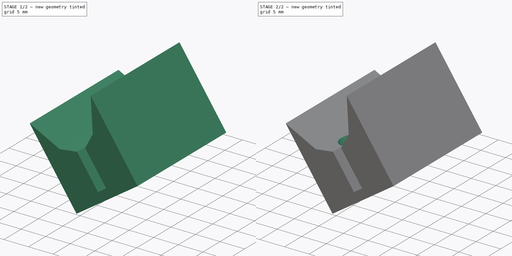
[diagram: build sequence overview — one tinted view per stage of 2, left to right]
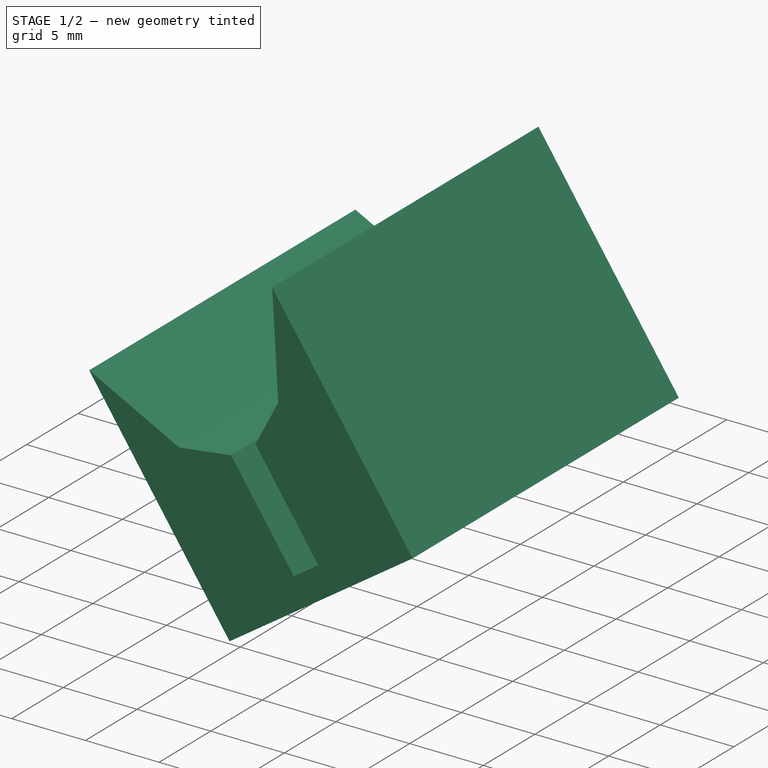
[diagram: stage 1 of 2 — iso view after this stage's code; geometry added in this stage tinted green]
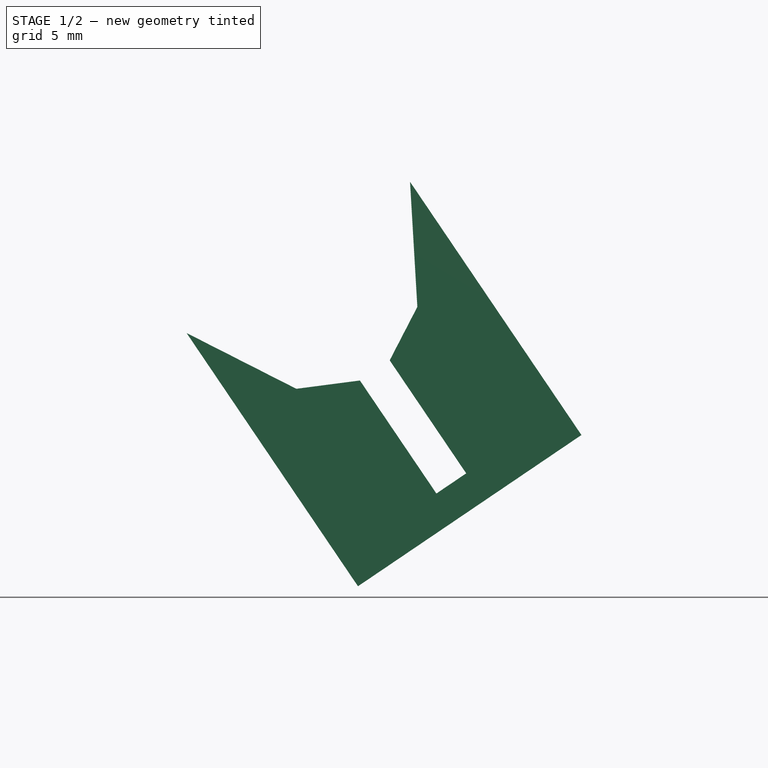
[diagram: stage 1 of 2 — front view after this stage's code; geometry added in this stage tinted green]
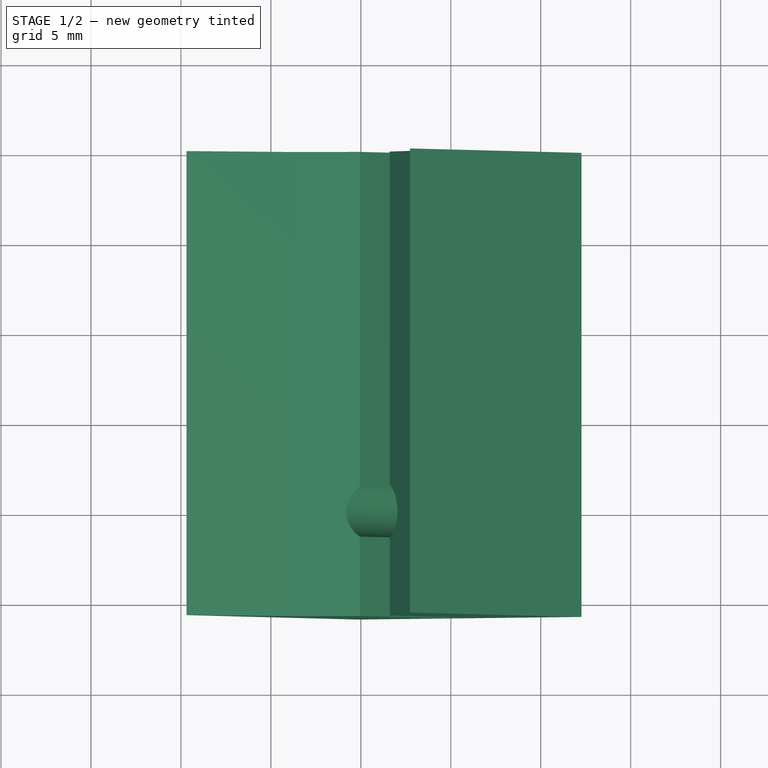
[diagram: stage 1 of 2 — top view after this stage's code; geometry added in this stage tinted green]
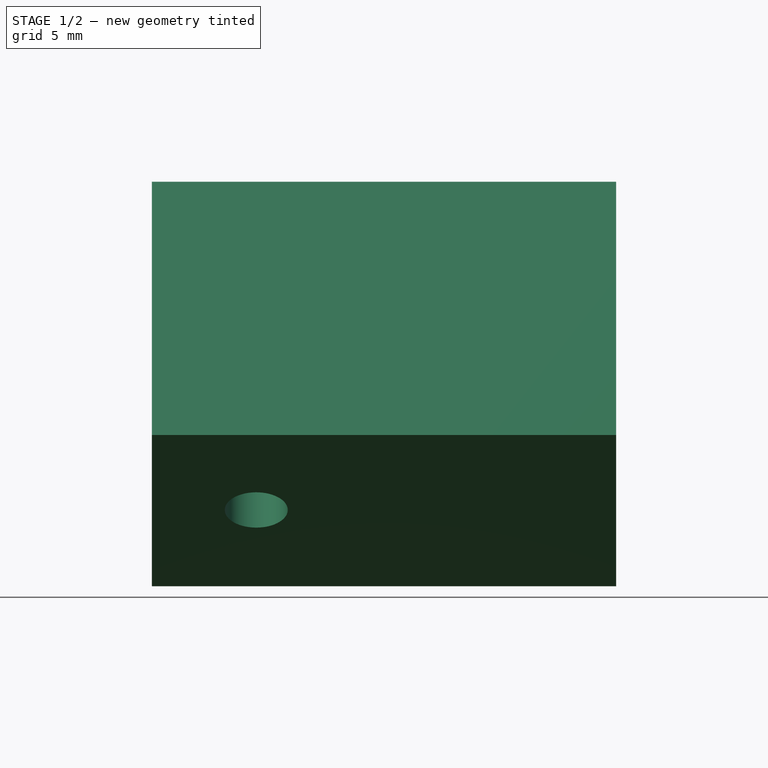
[diagram: stage 1 of 2 — right view after this stage's code; geometry added in this stage tinted green]
FCSTD DOCUMENT  (FreeCAD 0.21R33668 +7 (Git))
Label: T-grip-end-short
License: All rights reserved
LicenseURL: http://en.wikipedia.org/wiki/All_rights_reserved
objects: Sketcher::SketchObject×3, PartDesign::Plane×2, PartDesign::Pocket×2, PartDesign::Pad×1, PartDesign::Chamfer×1, PartDesign::Body×1
note: 14 computed .brp shape members not serialized (recipe doc carries the construction recipe); baked Part::Feature solids carry a one-line shape summary decoded from their .brp

FEATURE [Sketcher::SketchObject] Sketch
  FullyConstrained = false
  MapMode = 5
  Placement = pos=(0,0,0) rot=(1,0,0;1.5708rad)
  Support = -> [XZ_Plane]
  sketch-geometry (32):
    g0: LineSegment StartX=6.51565 StartY=40.1628 StartZ=0 EndX=112.93 EndY=112.193 EndZ=0
    g1: LineSegment StartX=112.93 StartY=112.193 StartZ=0 EndX=111.528 EndY=114.263 EndZ=0
    g2: LineSegment StartX=111.528 StartY=114.263 StartZ=0 EndX=5.63906 EndY=42.5883 EndZ=0
    g3: LineSegment StartX=119.223 StartY=116.565 StartZ=0 EndX=118.114 EndY=118.806 EndZ=0
    g4: LineSegment StartX=120.466 StartY=125.143 StartZ=0 EndX=104.731 EndY=114.492 EndZ=0
    g5: LineSegment StartX=104.731 StartY=114.492 StartZ=0 EndX=105.853 EndY=112.836 EndZ=0
    g6: LineSegment StartX=105.853 StartY=112.836 StartZ=0 EndX=112.892 EndY=117.601 EndZ=0
    g7: LineSegment StartX=112.892 StartY=117.601 StartZ=0 EndX=122.421 EndY=103.523 EndZ=0
    g8: LineSegment StartX=122.421 StartY=103.523 StartZ=0 EndX=124.077 EndY=104.644 EndZ=0
    g9: LineSegment StartX=124.077 StartY=104.644 StartZ=0 EndX=114.548 EndY=118.722 EndZ=0
    g10: LineSegment StartX=114.548 StartY=118.722 StartZ=0 EndX=121.587 EndY=123.487 EndZ=0
    g11: LineSegment StartX=121.587 StartY=123.487 StartZ=0 EndX=120.466 EndY=125.143 EndZ=0
    g12: LineSegment StartX=110.312 StartY=109.817 StartZ=0 EndX=119.841 EndY=95.7386 EndZ=0
    g13: LineSegment StartX=119.841 StartY=95.7386 StartZ=0 EndX=132.263 EndY=104.147 EndZ=0
    g14: LineSegment StartX=132.263 StartY=104.147 StartZ=0 EndX=122.733 EndY=118.225 EndZ=0
    g15: LineSegment StartX=122.733 StartY=118.225 StartZ=0 EndX=124.39 EndY=119.346 EndZ=0
    g16: LineSegment StartX=124.39 StartY=119.346 StartZ=0 EndX=135.04 EndY=103.612 EndZ=0
    g17: LineSegment StartX=135.04 StartY=103.612 StartZ=0 EndX=119.306 EndY=92.9612 EndZ=0
    g18: LineSegment StartX=119.306 StartY=92.9612 StartZ=0 EndX=108.655 EndY=108.696 EndZ=0
    g19: LineSegment StartX=108.655 StartY=108.696 StartZ=0 EndX=110.312 EndY=109.817 EndZ=0
    g20: LineSegment StartX=110.312 StartY=109.817 StartZ=0 EndX=116.414 EndY=106.714 EndZ=0
    g21: LineSegment StartX=116.414 StartY=106.714 StartZ=0 EndX=119.948 EndY=107.176 EndZ=0
    g22: LineSegment StartX=119.948 StartY=107.176 StartZ=0 EndX=124.2 EndY=100.894 EndZ=0
    g23: LineSegment StartX=124.2 StartY=100.894 StartZ=0 EndX=125.857 EndY=102.015 EndZ=0
    g24: LineSegment StartX=125.857 StartY=102.015 StartZ=0 EndX=121.604 EndY=108.297 EndZ=0
    g25: LineSegment StartX=121.604 StartY=108.297 StartZ=0 EndX=123.141 EndY=111.268 EndZ=0
    g26: LineSegment StartX=123.141 StartY=111.268 StartZ=0 EndX=122.733 EndY=118.225 EndZ=0
    g27: LineSegment StartX=122.733 StartY=118.225 StartZ=0 EndX=132.263 EndY=104.147 EndZ=0
    g28: LineSegment StartX=132.263 StartY=104.147 StartZ=0 EndX=119.841 EndY=95.7386 EndZ=0
    g29: LineSegment StartX=119.841 StartY=95.7386 StartZ=0 EndX=110.312 EndY=109.817 EndZ=0
    g30: LineSegment StartX=116.414 StartY=106.714 StartZ=0 EndX=123.141 EndY=111.268 EndZ=0
    g31: LineSegment StartX=119.948 StartY=107.176 StartZ=0 EndX=121.604 EndY=108.297 EndZ=0
  constraints (84):
    c: Coincident(g0,g1)
    c: Coincident(g1,g2)
    c: Parallel(g0,g2)
    c: Perpendicular(g1,g0)
    c: Distance(g1) = 2.5
    c: Distance(g0) = 128.5
    c: Equal(g3,g1)
    c: Coincident(g4,g5)
    c: Coincident(g5,g6)
    c: Coincident(g6,g7)
    c: Coincident(g7,g8)
    c: Coincident(g8,g9)
    c: Coincident(g9,g10)
    c: Coincident(g10,g11)
    c: Coincident(g11,g4)
    c: Coincident(g12,g13)
    c: Coincident(g13,g14)
    c: Coincident(g14,g15)
    c: Coincident(g15,g16)
    c: Coincident(g16,g17)
    c: Coincident(g17,g18)
    c: Coincident(g18,g19)
    c: Coincident(g19,g12)
    c: Perpendicular(g13,g12)
    c: Parallel(g16,g14)
    c: Parallel(g14,g12)
    c: Parallel(g12,g18)
    c: Parallel(g18,g5)
    c: Parallel(g5,g7)
    c: Parallel(g7,g9)
    c: Parallel(g9,g11)
    c: Parallel(g4,g6)
    c: Parallel(g6,g10)
    c: Parallel(g10,g8)
    c: Parallel(g8,g13)
    c: Parallel(g13,g17)
    c: Parallel(g17,g15)
    c: Parallel(g15,g19)
    c: Equal(g8,g5)
    c: Equal(g5,g11)
    c: Equal(g15,g19)
    c: Distance(g8) = 2
    c: Distance(g4) = 19
    c: Equal(g6,g10)
    c: Distance(g8,g4) = 19
    c: Equal(g19,g8)
    c: Distance(g13,g17) = 2
    c: Equal(g16,g17)
    c: Equal(g17,g4)
    c: Equal(g18,g16)
    c: Parallel(g6,g2)
    c: Distance(g1,g7) = 3
    c: Distance(g3,g9) = 3
    c: PointOnObject(g5,g18)
    c: Distance(g5,g2) = 2
    c: Distance(g5,g19) = 5
    c: DistanceX(g17) = 119.306
    c: DistanceY(g17) = 92.9612
    c: DistanceX(g4) = 120.466
    c: Coincident(g12,g20)
    c: Coincident(g20,g21)
    c: PointOnObject(g21,g7)
    c: Coincident(g21,g22)
    c: Coincident(g22,g23)
    c: Coincident(g23,g24)
    c: PointOnObject(g24,g9)
    c: Coincident(g24,g25)
    c: Coincident(g25,g26)
    c: Coincident(g26,g14)
    c: Coincident(g26,g27)
    c: Coincident(g27,g13)
    c: Coincident(g27,g28)
    c: Coincident(g28,g12)
    c: Coincident(g28,g29)
    c: Coincident(g29,g20)
    c: Coincident(g30,g20)
    c: Coincident(g30,g25)
    c: Coincident(g31,g21)
    c: Coincident(g31,g24)
    c: Parallel(g23,g31)
    c: Parallel(g31,g30)
    c: Parallel(g30,g17)
    c: Parallel(g22,g24)
    c: Parallel(g24,g27)
FEATURE [PartDesign::Pad] Pad
  Direction = (0,-1,-2e-16)
  Length = 25.8
  Length2 = 10
  Placement = pos=(0,0,0) rot=(1,0,0;1.5708rad)
  Profile = -> Sketch
  ReferenceAxis = -> Sketch [N_Axis]
  Type = 0
FEATURE [PartDesign::Plane] DatumPlane
  Length = 231.2
  MapMode = 5
  Placement = pos=(-6.78679,-2.2e-15,10.0265) rot=(0.956066,0,0.293151;3.14159rad)
  ResizeMode = 0
  Support = -> [Pad]
  Width = 71.4826
FEATURE [Sketcher::SketchObject] Sketch001
  FullyConstrained = true
  MapMode = 5
  Placement = pos=(-6.78679,-2.2e-15,10.0265) rot=(0.956066,0,0.293151;3.14159rad)
  Support = -> [DatumPlane]
  sketch-geometry (5):
    g0: Circle CenterX=160.476 CenterY=20 CenterZ=0 NormalX=0 NormalY=0 NormalZ=1 AngleXU=0 Radius=1.75
    g1: LineSegment StartX=152.576 StartY=0 StartZ=0 EndX=168.376 EndY=0 EndZ=0
    g2: LineSegment StartX=168.376 StartY=0 StartZ=0 EndX=168.376 EndY=40 EndZ=0
    g3: LineSegment StartX=168.376 StartY=40 StartZ=0 EndX=152.576 EndY=40 EndZ=0
    g4: LineSegment StartX=152.576 StartY=40 StartZ=0 EndX=152.576 EndY=0 EndZ=0
  constraints (14):
    c: Coincident(g1,g2)
    c: Coincident(g2,g3)
    c: Coincident(g3,g4)
    c: Coincident(g4,g1)
    c: Horizontal(g1)
    c: Horizontal(g3)
    c: Vertical(g2)
    c: Vertical(g4)
    c: PointOnObject(g1,g-1)
    c: DistanceX(g3) = 152.576
    c: DistanceY(g3) = 40
    c: DistanceX(g1) = 168.376
    c: Symmetric(g3,g1,g0)
    c: Diameter(g0) = 3.5
FEATURE [PartDesign::Pocket] Pocket
  BaseFeature = -> Pad
  Direction = (-0.560544,-2e-16,0.828125)
  Length = 38
  Length2 = 5
  Placement = pos=(0,0,0) rot=(1,0,0;1.5708rad)
  Profile = -> Sketch001
  ReferenceAxis = -> Sketch001 [N_Axis]
  Type = 0
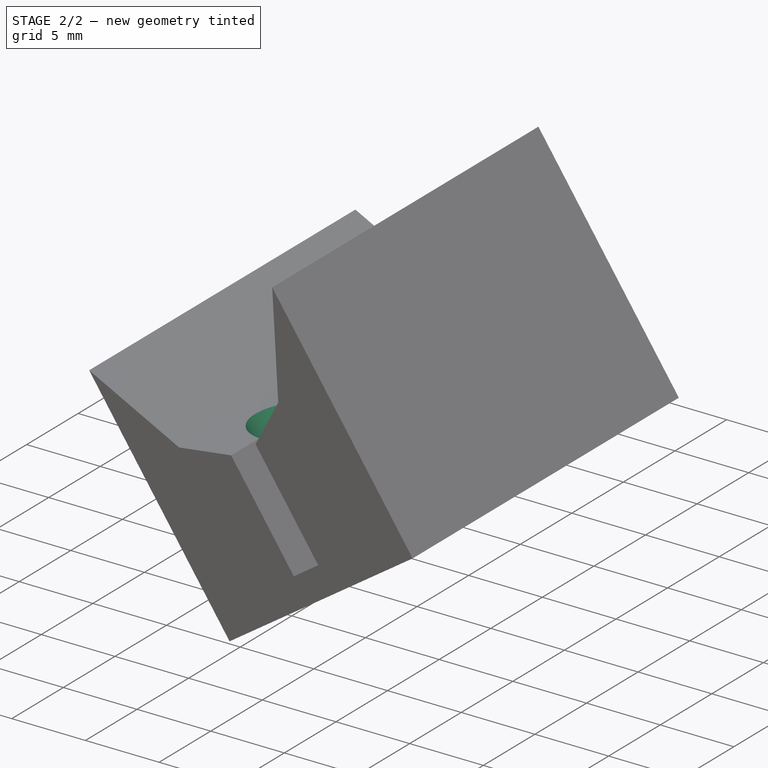
[diagram: stage 2 of 2 — iso view after this stage's code; geometry added in this stage tinted green]
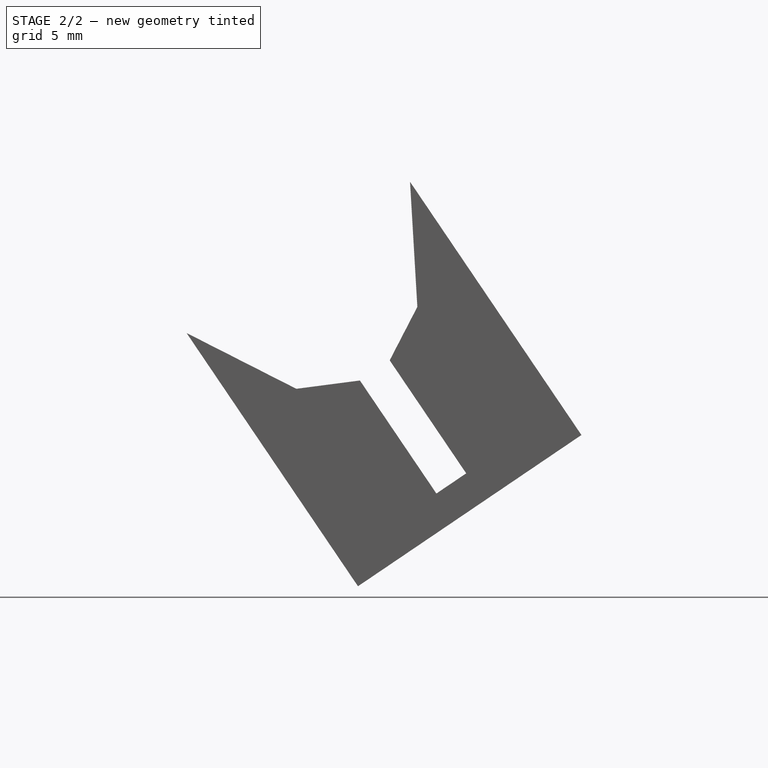
[diagram: stage 2 of 2 — front view after this stage's code; geometry added in this stage tinted green]
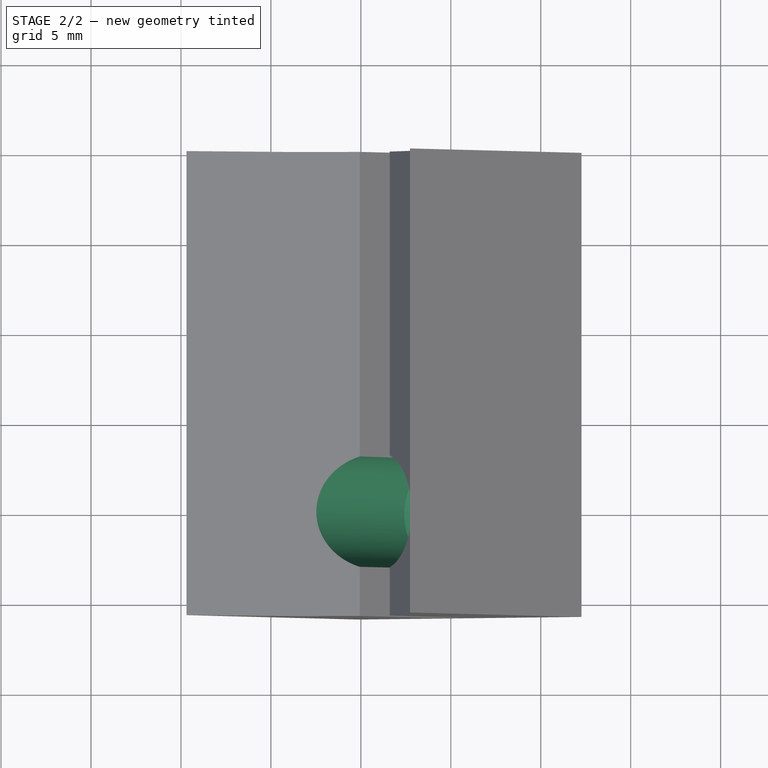
[diagram: stage 2 of 2 — top view after this stage's code; geometry added in this stage tinted green]
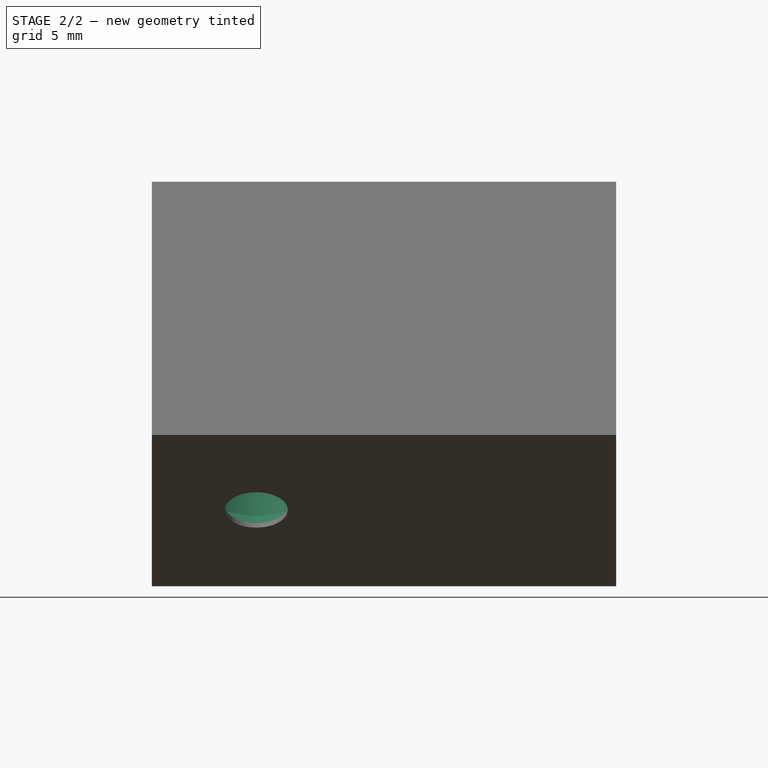
[diagram: stage 2 of 2 — right view after this stage's code; geometry added in this stage tinted green]
FEATURE [PartDesign::Plane] DatumPlane001
  AttachmentOffset = pos=(0,0,-1.8) rot=(0,0,1;0rad)
  Length = 231.2
  MapMode = 5
  Placement = pos=(-7.79576,-2.6e-15,11.5172) rot=(0.956066,0,0.293151;3.14159rad)
  ResizeMode = 0
  Support = -> [DatumPlane]
  Width = 71.4826
FEATURE [Sketcher::SketchObject] Sketch002
  FullyConstrained = true
  MapMode = 5
  Placement = pos=(-7.79576,-2.6e-15,11.5172) rot=(0.956066,0,0.293151;3.14159rad)
  Support = -> [DatumPlane001]
  sketch-geometry (5):
    g0: Circle CenterX=160.476 CenterY=20 CenterZ=0 NormalX=0 NormalY=0 NormalZ=1 AngleXU=0 Radius=3.25
    g1: LineSegment StartX=152.576 StartY=0 StartZ=0 EndX=168.376 EndY=0 EndZ=0
    g2: LineSegment StartX=168.376 StartY=0 StartZ=0 EndX=168.376 EndY=40 EndZ=0
    g3: LineSegment StartX=168.376 StartY=40 StartZ=0 EndX=152.576 EndY=40 EndZ=0
    g4: LineSegment StartX=152.576 StartY=40 StartZ=0 EndX=152.576 EndY=0 EndZ=0
  constraints (14):
    c: Coincident(g1,g2)
    c: Coincident(g2,g3)
    c: Coincident(g3,g4)
    c: Coincident(g4,g1)
    c: Horizontal(g1)
    c: Horizontal(g3)
    c: Vertical(g2)
    c: Vertical(g4)
    c: PointOnObject(g1,g-1)
    c: DistanceX(g3) = 152.576
    c: DistanceY(g3) = 40
    c: DistanceX(g1) = 168.376
    c: Symmetric(g3,g1,g0)
    c: Diameter(g0) = 6.5
FEATURE [PartDesign::Pocket] Pocket001
  BaseFeature = -> Pocket
  Direction = (-0.560544,-2e-16,0.828125)
  Length = 26
  Length2 = 5
  Placement = pos=(0,0,0) rot=(1,0,0;1.5708rad)
  Profile = -> Sketch002
  ReferenceAxis = -> Sketch002 [N_Axis]
  Type = 0
FEATURE [PartDesign::Chamfer] Chamfer
  Angle = 45
  Base = -> Pocket001 [Edge48]
  BaseFeature = -> Pocket001
  ChamferType = 0
  FlipDirection = false
  Placement = pos=(0,0,0) rot=(1,0,0;1.5708rad)
  Size = 1.49
  Size2 = 1
  SupportTransform = false
  UseAllEdges = false
FEATURE [PartDesign::Body] Body
  Group = -> [Sketch,Pad,DatumPlane,Sketch001,Pocket,DatumPlane001,Sketch002,Pocket001,Chamfer]
  Origin = -> Origin
  Tip = -> Chamfer
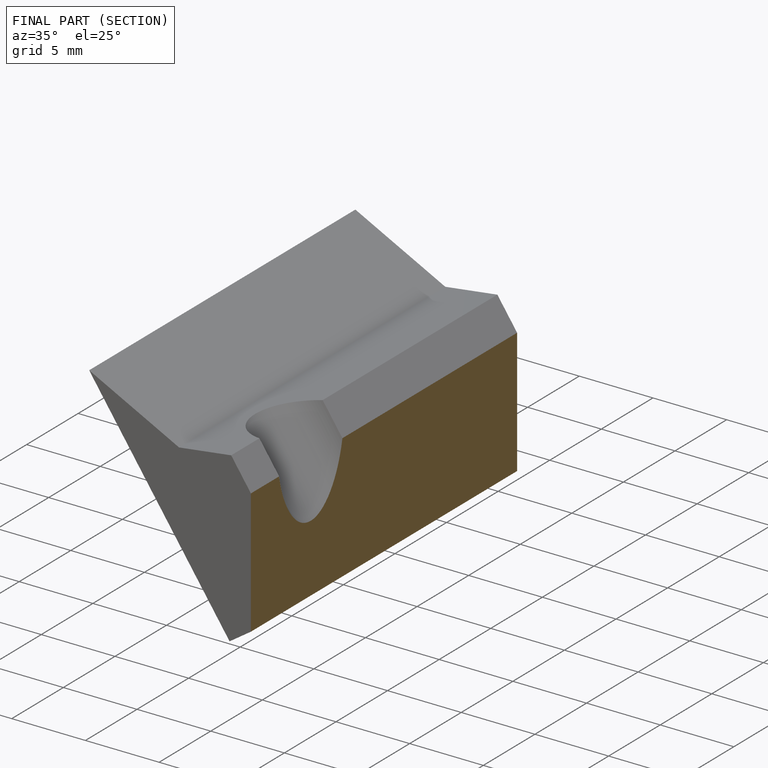
[diagram: finished part — half-section view (interior)]
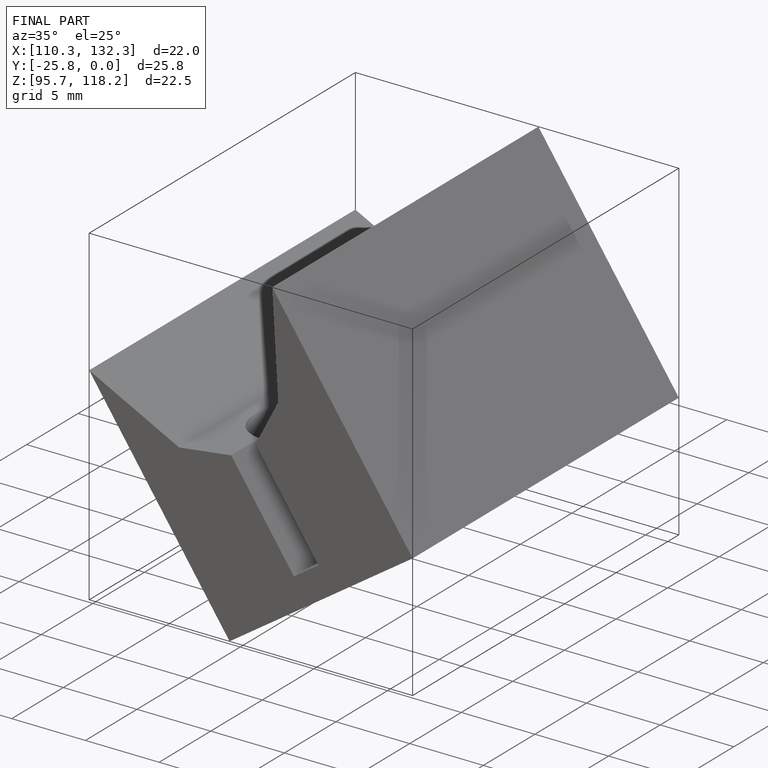
[diagram: finished part — iso view with bounding-box wireframe]
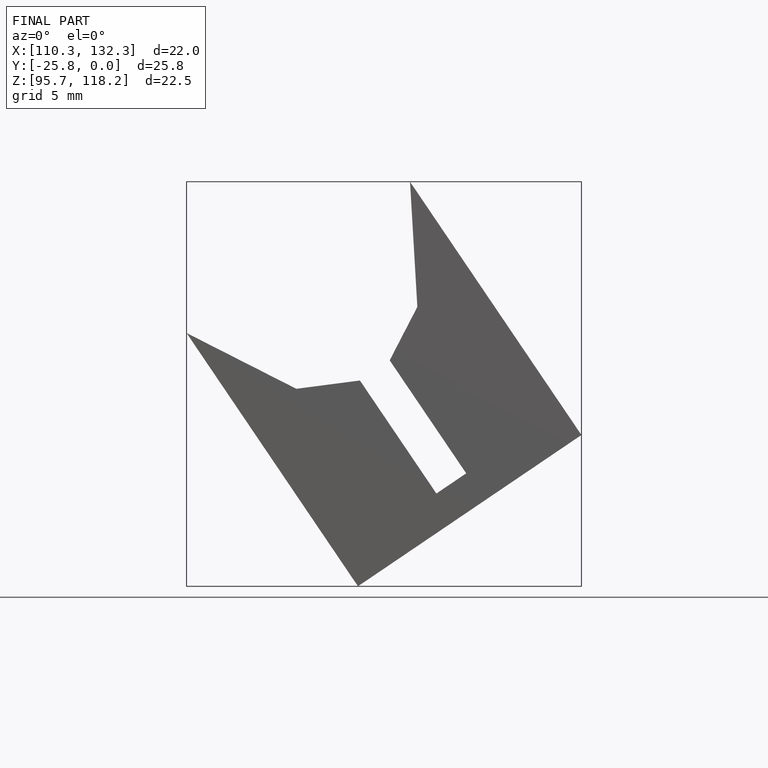
[diagram: finished part — front view with bounding-box wireframe]
